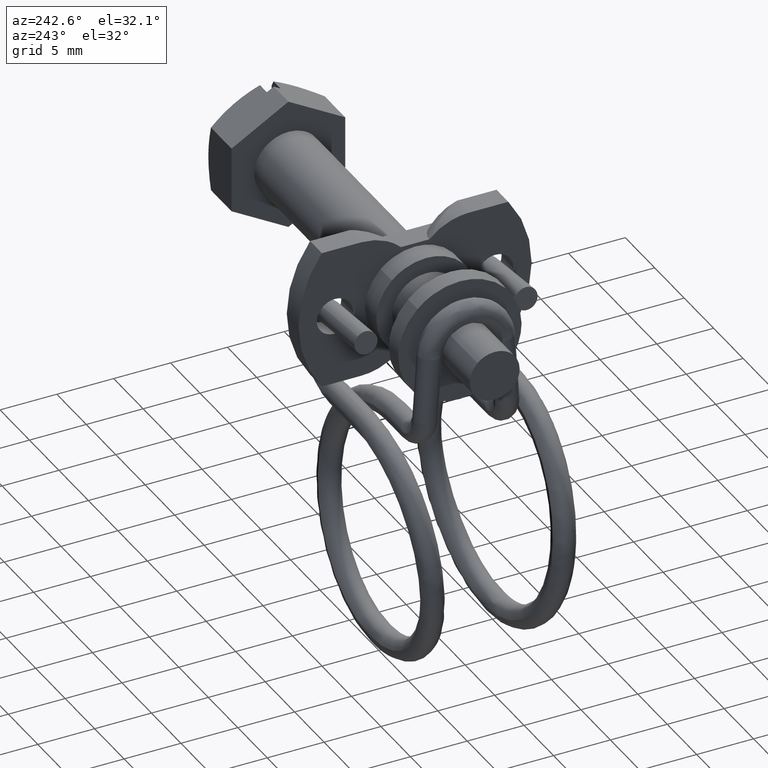
[diagram: clean part render]
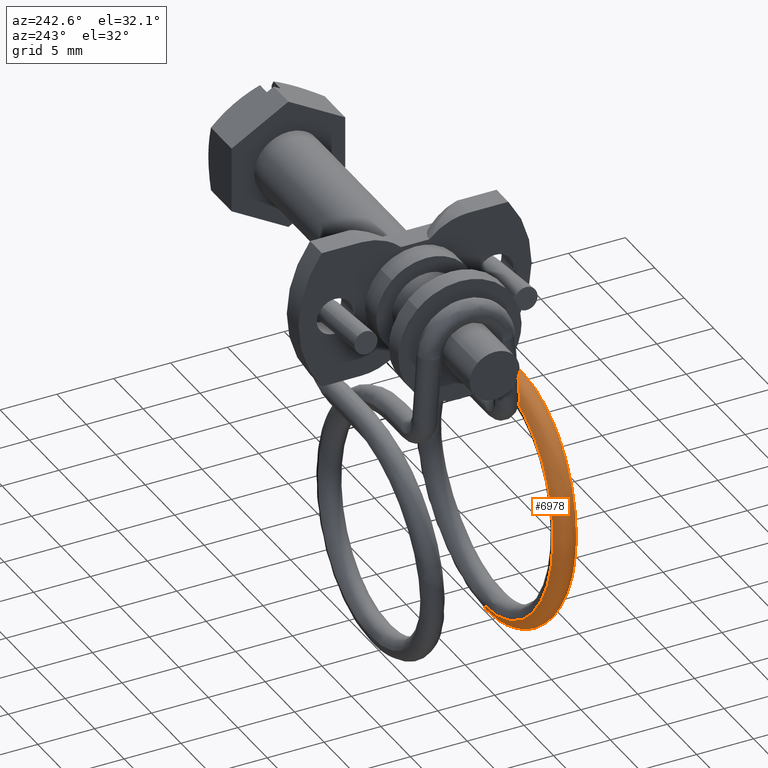
[diagram: same view with one face highlighted and labeled with its STEP entity id]
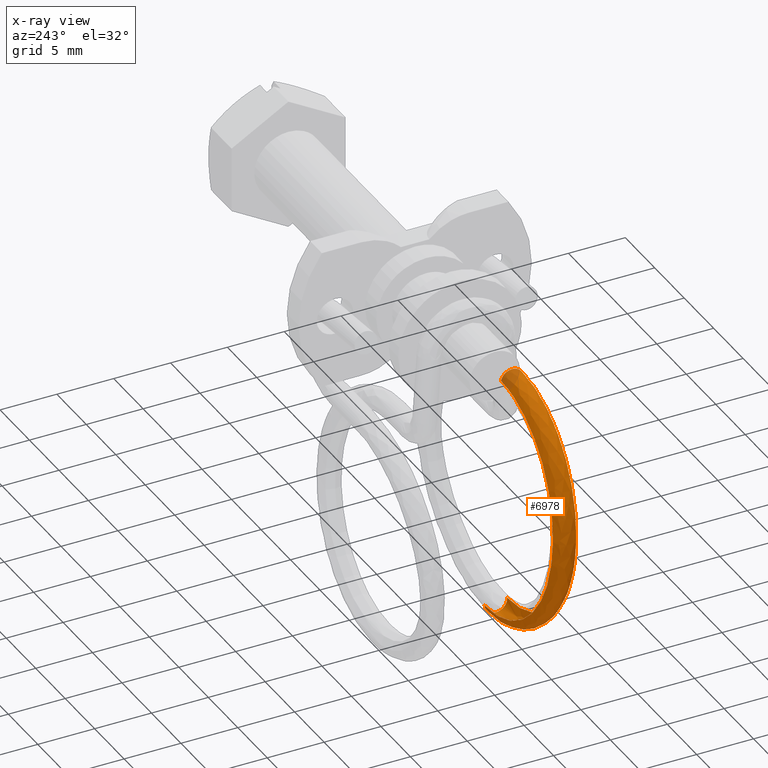
[diagram: x-ray of the same camera — body ghosted, the highlighted face saturated]
A machine part, auxiliary view. The second image highlights one B-rep face of the part: STEP entity #6978.
The next image is the same camera in x-ray: the body ghosted, the highlighted face saturated — about 4% of this face is hidden behind the body in this view.
In plain terms, the highlighted face is a freeform B-spline surface patch.
Its self-contained STEP definition (entity closure, byte-faithful):
#6238=CARTESIAN_POINT('',(-25.454066662369399,-6.047776192765348,-27.520403214176810));
#6239=VERTEX_POINT('',#6238);
#6263=CARTESIAN_POINT('',(-25.454066662369399,-4.052223807321394,-27.653709916825399));
#6264=VERTEX_POINT('',#6263);
#6502=CARTESIAN_POINT('',(-25.454066662369399,-4.052223807321394,-27.653709916825399));
#6503=CARTESIAN_POINT('',(-25.454066662369399,-4.069673613892858,-27.914927113239852));
#6504=CARTESIAN_POINT('',(-25.454066662369399,-4.194549397268601,-28.167352339799450));
#6505=CARTESIAN_POINT('',(-25.454066662369399,-4.588644052278180,-28.512091488579699));
#6506=CARTESIAN_POINT('',(-25.454066662369399,-4.855436154952490,-28.602282564791800));
#6507=CARTESIAN_POINT('',(-25.454066662369399,-5.377870547782850,-28.567382951648838));
#6508=CARTESIAN_POINT('',(-25.454066662369399,-5.630295774343160,-28.442507168273391));
#6509=CARTESIAN_POINT('',(-25.454066662369399,-5.975034923124434,-28.048412513264839));
#6510=CARTESIAN_POINT('',(-25.454066662369399,-6.065225999336812,-27.781620410591280));
#6511=CARTESIAN_POINT('',(-25.454066662369399,-6.047776192765348,-27.520403214176810));
#6512=B_SPLINE_CURVE_WITH_KNOTS('',3,(#6502,#6503,#6504,#6505,#6506,#6507,#6508,#6509,#6510,#6511),.UNSPECIFIED.,.F.,.U.,(4,2,2,2,4),(0.0,0.125000000000000,0.250000000000000,0.375000000000000,0.500000000000000),.UNSPECIFIED.);
#6513=EDGE_CURVE('',#6264,#6239,#6512,.T.);
#6702=CARTESIAN_POINT('',(-25.454037931066448,-7.452925954794733,-7.794469659902802));
#6703=VERTEX_POINT('',#6702);
#6704=CARTESIAN_POINT('',(-25.454066662369399,-6.047776192765348,-27.520403214176810));
#6705=CARTESIAN_POINT('',(-26.744374731732002,-6.047776192765348,-27.520403214176810));
#6706=CARTESIAN_POINT('',(-28.034738658408401,-6.066036162178545,-27.264064029904478));
#6707=CARTESIAN_POINT('',(-30.422128867761000,-6.136483208935276,-26.275106268285779));
#6708=CARTESIAN_POINT('',(-31.515218611331790,-6.188531301907596,-25.544438796878261));
#6709=CARTESIAN_POINT('',(-33.340980745639882,-6.318595909213861,-23.718551001285469));
#6710=CARTESIAN_POINT('',(-34.071606937827212,-6.396467885065214,-22.625359753726130));
#6711=CARTESIAN_POINT('',(-35.060435653492704,-6.566538108994194,-20.237860550894030));
#6712=CARTESIAN_POINT('',(-35.316712370542511,-6.658403868952521,-18.948220168206792));
#6713=CARTESIAN_POINT('',(-35.316631297285653,-6.842340351590464,-16.366062071817790));
#6714=CARTESIAN_POINT('',(-35.060274529579821,-6.934203889945086,-15.076452876705540));
#6715=CARTESIAN_POINT('',(-34.071324413834922,-7.104266926669320,-12.689054570101071));
#6716=CARTESIAN_POINT('',(-33.340655957190393,-7.182133958052710,-11.595932734528031));
#6717=CARTESIAN_POINT('',(-30.601986539379070,-7.377214644795351,-8.857328801823908));
#6718=CARTESIAN_POINT('',(-28.049077428772421,-7.452925954733678,-7.794469660667362));
#6719=CARTESIAN_POINT('',(-25.454037931066448,-7.452925954794733,-7.794469659902802));
#6720=B_SPLINE_CURVE_WITH_KNOTS('',3,(#6704,#6705,#6706,#6707,#6708,#6709,#6710,#6711,#6712,#6713,#6714,#6715,#6716,#6717,#6718,#6719),.UNSPECIFIED.,.F.,.U.,(4,2,2,2,2,2,2,4),(0.801728466506591,0.826512408193267,0.851296349879943,0.876080291566619,0.900864233253295,0.925648174939972,0.950432116626648,1.0),.UNSPECIFIED.);
#6721=EDGE_CURVE('',#6239,#6703,#6720,.T.);
#6724=CARTESIAN_POINT('',(-25.454181597552282,-5.496419061554718,-7.379643483406747));
#6725=VERTEX_POINT('',#6724);
#6726=CARTESIAN_POINT('',(-25.454066662369399,-4.052223807321394,-27.653709916825399));
#6727=CARTESIAN_POINT('',(-26.780414475833169,-4.052223807321394,-27.653709916825399));
#6728=CARTESIAN_POINT('',(-28.106817676195600,-4.070994040988657,-27.390207482742241));
#6729=CARTESIAN_POINT('',(-30.560820578188761,-4.143406479434674,-26.373658935488422));
#6730=CARTESIAN_POINT('',(-31.684371442972800,-4.196905549974262,-25.622622185404190));
#6731=CARTESIAN_POINT('',(-33.560945048691430,-4.330588938839988,-23.745932798063020));
#6732=CARTESIAN_POINT('',(-34.311867537400282,-4.410624496199223,-22.622368513968361));
#6733=CARTESIAN_POINT('',(-35.328151170954989,-4.585413727646132,-20.168622401903271));
#6734=CARTESIAN_POINT('',(-35.591536790559708,-4.679825800839453,-18.843236074535451));
#6735=CARTESIAN_POINT('',(-35.591472379639377,-4.868860307124147,-16.189510321499458));
#6736=CARTESIAN_POINT('',(-35.328023378160829,-4.963270097666006,-14.864156038710520));
#6737=CARTESIAN_POINT('',(-34.311649935739140,-5.138051943914562,-12.410513602376939));
#6738=CARTESIAN_POINT('',(-33.560700011099378,-5.218082420362973,-11.287020645709211));
#6739=CARTESIAN_POINT('',(-30.745852746344031,-5.418590829912628,-8.472220636006488));
#6740=CARTESIAN_POINT('',(-28.121724649243170,-5.496419061490244,-7.379643484187293));
#6741=CARTESIAN_POINT('',(-25.454181597552282,-5.496419061554718,-7.379643483406747));
#6742=B_SPLINE_CURVE_WITH_KNOTS('',3,(#6726,#6727,#6728,#6729,#6730,#6731,#6732,#6733,#6734,#6735,#6736,#6737,#6738,#6739,#6740,#6741),.UNSPECIFIED.,.F.,.U.,(4,2,2,2,2,2,2,4),(0.801728466506591,0.826512408193267,0.851296349879943,0.876080291566619,0.900864233253295,0.925648174939972,0.950432116626648,1.0),.UNSPECIFIED.);
#6743=EDGE_CURVE('',#6264,#6725,#6742,.T.);
#6770=CARTESIAN_POINT('',(-25.136722505313639,-4.050129814853900,-27.622363618382330));
#6771=CARTESIAN_POINT('',(-25.128195661631871,-4.059819666991769,-27.894603347343860));
#6772=CARTESIAN_POINT('',(-25.120131382957069,-4.186666657459883,-28.160457562330659));
#6773=CARTESIAN_POINT('',(-25.109987574756161,-4.588322355962235,-28.512112978458820));
#6774=CARTESIAN_POINT('',(-25.105525328957231,-5.123836789456955,-28.692366188061069));
#6775=CARTESIAN_POINT('',(-25.114505311395710,-5.630617470627735,-28.442485678300319));
#6776=CARTESIAN_POINT('',(-25.127912973597130,-5.981935188906824,-28.040525207684379));
#6777=CARTESIAN_POINT('',(-25.136918999853052,-6.072293758840934,-27.760152038761909));
#6778=CARTESIAN_POINT('',(-25.145372711235240,-6.045680790868274,-27.489035817173349));
#6779=CARTESIAN_POINT('',(-25.242503890998901,-4.050129814853900,-27.622363618382330));
#6780=CARTESIAN_POINT('',(-25.236819328544382,-4.059819666991769,-27.894603347343860));
#6781=CARTESIAN_POINT('',(-25.231443142761169,-4.186666657459883,-28.160457562330659));
#6782=CARTESIAN_POINT('',(-25.224680603960572,-4.588322355962235,-28.512112978458820));
#6783=CARTESIAN_POINT('',(-25.221705773427960,-5.123836789456955,-28.692366188061069));
#6784=CARTESIAN_POINT('',(-25.227692428386941,-5.630617470627735,-28.442485678300319));
#6785=CARTESIAN_POINT('',(-25.236630869854551,-5.981935188906824,-28.040525207684379));
#6786=CARTESIAN_POINT('',(-25.242634887358498,-6.072293758840934,-27.760152038761909));
#6787=CARTESIAN_POINT('',(-25.248270694946619,-6.045680790868274,-27.489035817173349));
#6788=CARTESIAN_POINT('',(-25.348285276684152,-4.050129814853900,-27.622363618382330));
#6789=CARTESIAN_POINT('',(-25.345442995456889,-4.059819666991769,-27.894603347343860));
#6790=CARTESIAN_POINT('',(-25.342754902565289,-4.186666657459883,-28.160457562330659));
#6791=CARTESIAN_POINT('',(-25.339373633164978,-4.588322355962235,-28.512112978458820));
#6792=CARTESIAN_POINT('',(-25.337886217898660,-5.123836789456955,-28.692366188061069));
#6793=CARTESIAN_POINT('',(-25.340879545378169,-5.630617470627735,-28.442485678300319));
#6794=CARTESIAN_POINT('',(-25.345348766111979,-5.981935188906824,-28.040525207684379));
#6795=CARTESIAN_POINT('',(-25.348350774863949,-6.072293758840934,-27.760152038761909));
#6796=CARTESIAN_POINT('',(-25.351168678658009,-6.045680790868274,-27.489035817173349));
#6797=CARTESIAN_POINT('',(-26.776332763465561,-4.050129814853900,-27.622363618382330));
#6798=CARTESIAN_POINT('',(-26.811861246026471,-4.059819666991769,-27.894603347343860));
#6799=CARTESIAN_POINT('',(-26.845462376169891,-4.186666657459883,-28.160457562330659));
#6800=CARTESIAN_POINT('',(-26.887728204677700,-4.588322355962235,-28.512112978458820));
#6801=CARTESIAN_POINT('',(-26.906320878352290,-5.123836789456955,-28.692366188061069));
#6802=CARTESIAN_POINT('',(-26.868904319380508,-5.630617470627735,-28.442485678300319));
#6803=CARTESIAN_POINT('',(-26.813039111751120,-5.981935188906824,-28.040525207684379));
#6804=CARTESIAN_POINT('',(-26.775514036973430,-6.072293758840934,-27.760152038761909));
#6805=CARTESIAN_POINT('',(-26.740290272046330,-6.045680790868274,-27.489035817173349));
#6806=CARTESIAN_POINT('',(-28.098653022392160,-4.068842258120645,-27.359672464085179));
#6807=CARTESIAN_POINT('',(-28.169707683077899,-4.079035135912084,-27.624850560976849));
#6808=CARTESIAN_POINT('',(-28.236907763941399,-4.206357863852028,-27.884026223963762));
#6809=CARTESIAN_POINT('',(-28.321436679527419,-4.608611977892132,-28.227280894870610));
#6810=CARTESIAN_POINT('',(-28.358620820918361,-5.144389653472249,-28.403838629427341));
#6811=CARTESIAN_POINT('',(-28.283790129875641,-5.650640576891510,-28.161395025322989));
#6812=CARTESIAN_POINT('',(-28.172063338126680,-6.001167334494068,-27.770538309028119));
#6813=CARTESIAN_POINT('',(-28.097015622511901,-6.090994610268973,-27.497623614332099));
#6814=CARTESIAN_POINT('',(-28.026570377325779,-6.063882930949854,-27.233508459215031));
#6815=CARTESIAN_POINT('',(-30.545106699236790,-4.141032104503758,-26.346248734092399));
#6816=CARTESIAN_POINT('',(-30.681821980564330,-4.153162492971748,-26.584227447765109));
#6817=CARTESIAN_POINT('',(-30.811120718630360,-4.282317625328233,-26.817679242199450));
#6818=CARTESIAN_POINT('',(-30.973761625827439,-4.686876664546933,-27.128576649758070));
#6819=CARTESIAN_POINT('',(-31.045307113522259,-5.223668273206130,-27.290900473385889));
#6820=CARTESIAN_POINT('',(-30.901326424863619,-5.727878721568424,-27.077101698797449));
#6821=CARTESIAN_POINT('',(-30.686354463582109,-6.075358925296992,-26.729013462365689));
#6822=CARTESIAN_POINT('',(-30.541956200970841,-6.163139808212746,-26.484826673157880));
#6823=CARTESIAN_POINT('',(-30.406413487508040,-6.134107235692032,-26.247677619929611));
#6824=CARTESIAN_POINT('',(-31.665204008465690,-4.194366843377791,-25.597518923521449));
#6825=CARTESIAN_POINT('',(-31.831943041656022,-4.207927625869793,-25.815417316759412));
#6826=CARTESIAN_POINT('',(-31.989636800309579,-4.338435556103624,-26.029878109841761));
#6827=CARTESIAN_POINT('',(-32.187994930867333,-4.744696238177653,-26.316887320699468));
#6828=CARTESIAN_POINT('',(-32.275252370790909,-5.282236396941829,-26.468702762933422));
#6829=CARTESIAN_POINT('',(-32.099652389636169,-5.784940436402986,-26.276051429486792));
#6830=CARTESIAN_POINT('',(-31.837470893613379,-6.130171479643101,-25.959537614181620));
#6831=CARTESIAN_POINT('',(-31.661361635986520,-6.216441584759865,-25.736559598093319));
#6832=CARTESIAN_POINT('',(-31.496052675788441,-6.185990886294781,-25.519318642135019));
#6833=CARTESIAN_POINT('',(-33.536013784119987,-4.327640384142588,-23.726583112492222));
#6834=CARTESIAN_POINT('',(-33.752830364857893,-4.344768612219800,-23.894400584487240));
#6835=CARTESIAN_POINT('',(-33.957885059615663,-4.478650460918992,-24.061497250788999));
#6836=CARTESIAN_POINT('',(-34.215817055548193,-4.889155091297069,-24.288928582821590));
#6837=CARTESIAN_POINT('',(-34.329280948229787,-5.428562156463627,-24.414535806780190));
#6838=CARTESIAN_POINT('',(-34.100942167778221,-5.927509166959269,-24.274626825611222));
#6839=CARTESIAN_POINT('',(-33.760018423582054,-6.267130736506423,-24.036860563304550));
#6840=CARTESIAN_POINT('',(-33.531017413154792,-6.349632916489266,-23.866777863283989));
#6841=CARTESIAN_POINT('',(-33.316060406217183,-6.315645369400830,-23.699188298831771));
#6842=CARTESIAN_POINT('',(-34.284632130378853,-4.407430903287326,-22.606458751782281));
#6843=CARTESIAN_POINT('',(-34.521449234518577,-4.426692020342119,-22.744334058615589));
#6844=CARTESIAN_POINT('',(-34.745419462430547,-4.562591052860279,-22.883112865105119));
#6845=CARTESIAN_POINT('',(-35.027144725942563,-4.975633036743396,-23.074924031945201));
#6846=CARTESIAN_POINT('',(-35.151075240835652,-5.516156279858155,-23.184861999414220));
#6847=CARTESIAN_POINT('',(-34.901673056905629,-6.012857054082173,-23.076486388312439));
#6848=CARTESIAN_POINT('',(-34.529300364929817,-6.349124855693587,-22.885801373306499));
#6849=CARTESIAN_POINT('',(-34.279174862772479,-6.429374284852292,-22.747343496689439));
#6850=CARTESIAN_POINT('',(-34.044388871198500,-6.393272141964286,-22.609439292012691));
#6851=CARTESIAN_POINT('',(-35.297794392293937,-4.581685679631942,-20.160215488234851));
#6852=CARTESIAN_POINT('',(-35.561659796287252,-4.605598860445907,-20.232783663341859));
#6853=CARTESIAN_POINT('',(-35.811211005371781,-4.745897591136965,-20.309798125448129));
#6854=CARTESIAN_POINT('',(-36.125113798578226,-5.164473820078958,-20.423917822487731));
#6855=CARTESIAN_POINT('',(-36.263199159858267,-5.707431569177086,-20.499679430567092));
#6856=CARTESIAN_POINT('',(-35.985311258729048,-6.199233056815150,-20.460081542837191));
#6857=CARTESIAN_POINT('',(-35.570407651321723,-6.528185924349551,-20.372085869187941));
#6858=CARTESIAN_POINT('',(-35.291713817470729,-6.603521857974661,-20.302605185648950));
#6859=CARTESIAN_POINT('',(-35.030111511574077,-6.562807550747614,-20.229447992109399));
#6860=CARTESIAN_POINT('',(-35.560368436993492,-4.675809368012472,-18.838877597406700));
#6861=CARTESIAN_POINT('',(-35.831232637439413,-4.702232740105520,-18.876206919181609));
#6862=CARTESIAN_POINT('',(-36.087402971612448,-4.844905488986072,-18.919894168537681));
#6863=CARTESIAN_POINT('',(-36.409631758765833,-5.266467922416579,-18.992092589339130));
#6864=CARTESIAN_POINT('',(-36.551379712116642,-5.810739298328292,-19.049413091761082));
#6865=CARTESIAN_POINT('',(-36.266121080200357,-6.299897196563172,-19.046926742123031));
#6866=CARTESIAN_POINT('',(-35.840212521588292,-6.624903023670352,-19.014340861296969));
#6867=CARTESIAN_POINT('',(-35.554126580298508,-6.697587700931534,-18.982079347030002));
#6868=CARTESIAN_POINT('',(-35.285585504627463,-6.654384731618433,-18.943858773256839));
#6869=CARTESIAN_POINT('',(-35.560289224591052,-4.864266493409802,-16.193257298536309));
#6870=CARTESIAN_POINT('',(-35.831151312626247,-4.895715568674084,-16.160034221195971));
#6871=CARTESIAN_POINT('',(-36.087319648994857,-5.043141385914701,-16.136996404526730));
#6872=CARTESIAN_POINT('',(-36.409545923162582,-5.470682557898474,-16.125263416303099));
#6873=CARTESIAN_POINT('',(-36.551292771041567,-6.017583971803536,-16.145662619563971));
#6874=CARTESIAN_POINT('',(-36.266036363802257,-6.501449087867371,-16.217478007902439));
#6875=CARTESIAN_POINT('',(-35.840131126753207,-6.818552467953221,-16.295829159598000));
#6876=CARTESIAN_POINT('',(-35.554047416578513,-6.885929012874103,-16.338084873809581));
#6877=CARTESIAN_POINT('',(-35.285508435195140,-6.837743444407638,-16.369811591404549));
#6878=CARTESIAN_POINT('',(-35.297637010332153,-4.958387906052839,-14.871951355226351));
#6879=CARTESIAN_POINT('',(-35.561498216718647,-4.992347112414852,-14.803490269400140));
#6880=CARTESIAN_POINT('',(-35.811045455912279,-5.142146890928300,-14.747126038998079));
#6881=CARTESIAN_POINT('',(-36.124943255511091,-5.572674195805927,-14.693472779592460));
#6882=CARTESIAN_POINT('',(-36.263026420096828,-6.120889205031391,-14.695431319317260));
#6883=CARTESIAN_POINT('',(-35.985142939658843,-6.602110795071130,-14.804357356004660));
#6884=CARTESIAN_POINT('',(-35.570245932591128,-6.915267229359193,-14.938116972081611));
#6885=CARTESIAN_POINT('',(-35.291556532240712,-6.979992581480794,-15.017590963239829));
#6886=CARTESIAN_POINT('',(-35.029958387946273,-6.929318410593381,-15.084253463000920));
#6887=CARTESIAN_POINT('',(-34.284357479795311,-5.132635319623121,-12.425811452615410));
#6888=CARTESIAN_POINT('',(-34.521167247606947,-5.171246394558664,-12.292045975137331));
#6889=CARTESIAN_POINT('',(-34.745130537168862,-5.325445686647865,-12.173919991777710));
#6890=CARTESIAN_POINT('',(-35.026847073147643,-5.761507004387195,-12.042578522252731));
#6891=CARTESIAN_POINT('',(-35.150773748826012,-6.312156417450471,-12.010362136519250));
#6892=CARTESIAN_POINT('',(-34.901379291083138,-6.788478926463481,-12.188063010888211));
#6893=CARTESIAN_POINT('',(-34.529018134798910,-7.094320733585844,-12.424507659812400));
#6894=CARTESIAN_POINT('',(-34.278900381247773,-7.154132796325772,-12.572955949993320));
#6895=CARTESIAN_POINT('',(-34.044121663083203,-7.098846654611086,-12.704362744318161));
#6896=CARTESIAN_POINT('',(-33.535699082844737,-5.212420773310034,-11.305758202397920));
#6897=CARTESIAN_POINT('',(-33.752507248155588,-5.253164602715495,-11.142052448023540));
#6898=CARTESIAN_POINT('',(-33.957553984000867,-5.409380951411964,-10.995610390681049));
#6899=CARTESIAN_POINT('',(-34.215475968666617,-5.847979462641172,-10.828651002303619));
#6900=CARTESIAN_POINT('',(-34.328935457410452,-6.399744983261846,-10.780766348242089));
#6901=CARTESIAN_POINT('',(-34.100605539603848,-6.873821397659893,-10.989998604066511));
#6902=CARTESIAN_POINT('',(-33.759695027872681,-7.176309648347498,-11.273521531170211));
#6903=CARTESIAN_POINT('',(-33.530702905806891,-7.233869102329561,-11.453592650374659));
#6904=CARTESIAN_POINT('',(-33.315754242119127,-7.176468498170059,-11.614682932404760));
#6905=CARTESIAN_POINT('',(-30.729465707694771,-5.412314461620150,-8.499587842447211));
#6906=CARTESIAN_POINT('',(-30.871157025464470,-5.458409016250606,-8.260766927317448));
#6907=CARTESIAN_POINT('',(-31.005161859498831,-5.619685823534879,-8.043284563441020));
#6908=CARTESIAN_POINT('',(-31.173722420104511,-6.064649730029829,-7.786965757661683));
#6909=CARTESIAN_POINT('',(-31.247871954325920,-6.619215378348564,-7.699772031799872));
#6910=CARTESIAN_POINT('',(-31.098650789648850,-7.087656715997364,-7.988111264324167));
#6911=CARTESIAN_POINT('',(-30.875854477624110,-7.381731452960656,-8.389745738816515));
#6912=CARTESIAN_POINT('',(-30.726200540511311,-7.433639487303264,-8.649153261401208));
#6913=CARTESIAN_POINT('',(-30.585724468640940,-7.370934049558323,-8.884714462937577));
#6914=CARTESIAN_POINT('',(-28.113398261388760,-5.489902939485030,-7.410376428521169));
#6915=CARTESIAN_POINT('',(-28.184873276472459,-5.538084385137783,-7.142259081941331));
#6916=CARTESIAN_POINT('',(-28.252470908300172,-5.701334873590149,-6.897069562095192));
#6917=CARTESIAN_POINT('',(-28.337499891033062,-6.148781412944624,-6.605898776770218));
#6918=CARTESIAN_POINT('',(-28.374904011204912,-6.704439167692165,-6.503373718120506));
#6919=CARTESIAN_POINT('',(-28.299630627029611,-7.170682711466223,-6.822566271035771));
#6920=CARTESIAN_POINT('',(-28.187242867401100,-7.461476007960187,-7.270266637109336));
#6921=CARTESIAN_POINT('',(-28.111751174760609,-7.511179874370987,-7.560616961165146));
#6922=CARTESIAN_POINT('',(-28.040889180441301,-7.446405444271426,-7.825223327041634));
#6923=CARTESIAN_POINT('',(-25.347683485891249,-5.489902939551585,-7.410376427712818));
#6924=CARTESIAN_POINT('',(-25.344824218868570,-5.538084385208991,-7.142259081100270));
#6925=CARTESIAN_POINT('',(-25.342120061628879,-5.701334873661357,-6.897069561265272));
#6926=CARTESIAN_POINT('',(-25.338718585378551,-6.148781413017020,-6.605898775898145));
#6927=CARTESIAN_POINT('',(-25.337222281149788,-6.704439167752694,-6.503373717230387));
#6928=CARTESIAN_POINT('',(-25.340233497094360,-7.170682711533873,-6.822566270165587));
#6929=CARTESIAN_POINT('',(-25.344729426398910,-7.461476008026594,-7.270266636293854));
#6930=CARTESIAN_POINT('',(-25.347749375495798,-7.511179874438738,-7.560616960343462));
#6931=CARTESIAN_POINT('',(-25.350584119402900,-7.446405444334425,-7.825223326249625));
#6932=CARTESIAN_POINT('',(-25.241300309413099,-5.489902939554145,-7.410376427681724));
#6933=CARTESIAN_POINT('',(-25.235581775367748,-5.538084385211730,-7.142259081067916));
#6934=CARTESIAN_POINT('',(-25.230173460888359,-5.701334873664097,-6.897069561233348));
#6935=CARTESIAN_POINT('',(-25.223370508387699,-6.148781413019805,-6.605898775864600));
#6936=CARTESIAN_POINT('',(-25.220377899930199,-6.704439167755020,-6.503373717196150));
#6937=CARTESIAN_POINT('',(-25.226400331819310,-7.170682711536475,-6.822566270132115));
#6938=CARTESIAN_POINT('',(-25.235392190428410,-7.461476008029148,-7.270266636262488));
#6939=CARTESIAN_POINT('',(-25.241432088622201,-7.511179874441345,-7.560616960311855));
#6940=CARTESIAN_POINT('',(-25.247101576436389,-7.446405444336849,-7.825223326219160));
#6941=CARTESIAN_POINT('',(-25.134917132934941,-5.489902939556705,-7.410376427650631));
#6942=CARTESIAN_POINT('',(-25.126339331866919,-5.538084385214471,-7.142259081035565));
#6943=CARTESIAN_POINT('',(-25.118226860147839,-5.701334873666835,-6.897069561201426));
#6944=CARTESIAN_POINT('',(-25.108022431396840,-6.148781413022590,-6.605898775831056));
#6945=CARTESIAN_POINT('',(-25.103533518710599,-6.704439167757348,-6.503373717161912));
#6946=CARTESIAN_POINT('',(-25.112567166544270,-7.170682711539078,-6.822566270098643));
#6947=CARTESIAN_POINT('',(-25.126054954457921,-7.461476008031702,-7.270266636231120));
#6948=CARTESIAN_POINT('',(-25.135114801748600,-7.511179874443952,-7.560616960280253));
#6949=CARTESIAN_POINT('',(-25.143619033469889,-7.446405444339272,-7.825223326188696));
#6950=B_SPLINE_SURFACE_WITH_KNOTS('',3,3,((#6770,#6779,#6788,#6797,#6806,#6815,#6824,#6833,#6842,#6851,#6860,#6869,#6878,#6887,#6896,#6905,#6914,#6923,#6932,#6941),(#6771,#6780,#6789,#6798,#6807,#6816,#6825,#6834,#6843,#6852,#6861,#6870,#6879,#6888,#6897,#6906,#6915,#6924,#6933,#6942),(#6772,#6781,#6790,#6799,#6808,#6817,#6826,#6835,#6844,#6853,#6862,#6871,#6880,#6889,#6898,#6907,#6916,#6925,#6934,#6943),(#6773,#6782,#6791,#6800,#6809,#6818,#6827,#6836,#6845,#6854,#6863,#6872,#6881,#6890,#6899,#6908,#6917,#6926,#6935,#6944),(#6774,#6783,#6792,#6801,#6810,#6819,#6828,#6837,#6846,#6855,#6864,#6873,#6882,#6891,#6900,#6909,#6918,#6927,#6936,#6945),(#6775,#6784,#6793,#6802,#6811,#6820,#6829,#6838,#6847,#6856,#6865,#6874,#6883,#6892,#6901,#6910,#6919,#6928,#6937,#6946),(#6776,#6785,#6794,#6803,#6812,#6821,#6830,#6839,#6848,#6857,#6866,#6875,#6884,#6893,#6902,#6911,#6920,#6929,#6938,#6947),(#6777,#6786,#6795,#6804,#6813,#6822,#6831,#6840,#6849,#6858,#6867,#6876,#6885,#6894,#6903,#6912,#6921,#6930,#6939,#6948),(#6778,#6787,#6796,#6805,#6814,#6823,#6832,#6841,#6850,#6859,#6868,#6877,#6886,#6895,#6904,#6913,#6922,#6931,#6940,#6949)),.UNSPECIFIED.,.F.,.F.,.U.,(4,2,1,2,4),(4,2,2,2,2,2,2,2,2,4),(0.0,0.817641411252294,1.603834849345686,2.390028287439078,3.207690865686955),(0.0,0.347120476995183,4.686122436118233,9.025124395241283,13.364126354364330,17.703128313487401,22.042130272610621,26.381132231733670,35.059136149979793,35.406288653508611),.UNSPECIFIED.);
#6951=ORIENTED_EDGE('',*,*,#6721,.T.);
#6952=CARTESIAN_POINT('',(-25.454941186459120,-6.621972022116808,-6.598004356550138));
#6953=VERTEX_POINT('',#6952);
#6954=CARTESIAN_POINT('',(-25.454941186459120,-6.621972022116808,-6.598004356550138));
#6955=CARTESIAN_POINT('',(-25.454940796175880,-6.642112931594324,-6.600955911871514));
#6956=CARTESIAN_POINT('',(-25.454939873973409,-6.662164884491209,-6.604540883292466));
#6957=CARTESIAN_POINT('',(-25.454919600384070,-6.938196478949031,-6.663071772766574));
#6958=CARTESIAN_POINT('',(-25.454811602093550,-7.170371003607670,-6.822474344092145));
#6959=CARTESIAN_POINT('',(-25.454478208381389,-7.455765102319316,-7.261469515457038));
#6960=CARTESIAN_POINT('',(-25.454254865942438,-7.507227267254544,-7.538358856668307));
#6961=CARTESIAN_POINT('',(-25.454037931066448,-7.452925954794733,-7.794469659902802));
#6962=B_SPLINE_CURVE_WITH_KNOTS('',3,(#6954,#6955,#6956,#6957,#6958,#6959,#6960,#6961),.UNSPECIFIED.,.F.,.U.,(4,2,2,4),(0.240274424941992,0.250000000000000,0.374999999999999,0.499999999999999),.UNSPECIFIED.);
#6963=EDGE_CURVE('',#6953,#6703,#6962,.T.);
#6964=ORIENTED_EDGE('',*,*,#6963,.F.);
#6965=CARTESIAN_POINT('',(-25.454181597552282,-5.496419061554718,-7.379643483406747));
#6966=CARTESIAN_POINT('',(-25.454398532939511,-5.550720464341081,-7.123532063720904));
#6967=CARTESIAN_POINT('',(-25.454606392504530,-5.710117195172314,-6.891349211339175));
#6968=CARTESIAN_POINT('',(-25.454875695271170,-6.132023342817388,-6.617041645932901));
#6969=CARTESIAN_POINT('',(-25.454945804654859,-6.383246290564462,-6.563029732768419));
#6970=CARTESIAN_POINT('',(-25.454941186459120,-6.621972022116808,-6.598004356550138));
#6971=B_SPLINE_CURVE_WITH_KNOTS('',3,(#6965,#6966,#6967,#6968,#6969,#6970),.UNSPECIFIED.,.F.,.U.,(4,2,4),(0.0,0.125000000000000,0.240274424941992),.UNSPECIFIED.);
#6972=EDGE_CURVE('',#6725,#6953,#6971,.T.);
#6973=ORIENTED_EDGE('',*,*,#6972,.F.);
#6974=ORIENTED_EDGE('',*,*,#6743,.F.);
#6975=ORIENTED_EDGE('',*,*,#6513,.T.);
#6976=EDGE_LOOP('',(#6951,#6964,#6973,#6974,#6975));
#6977=FACE_OUTER_BOUND('',#6976,.T.);
#6978=ADVANCED_FACE('',(#6977),#6950,.T.);